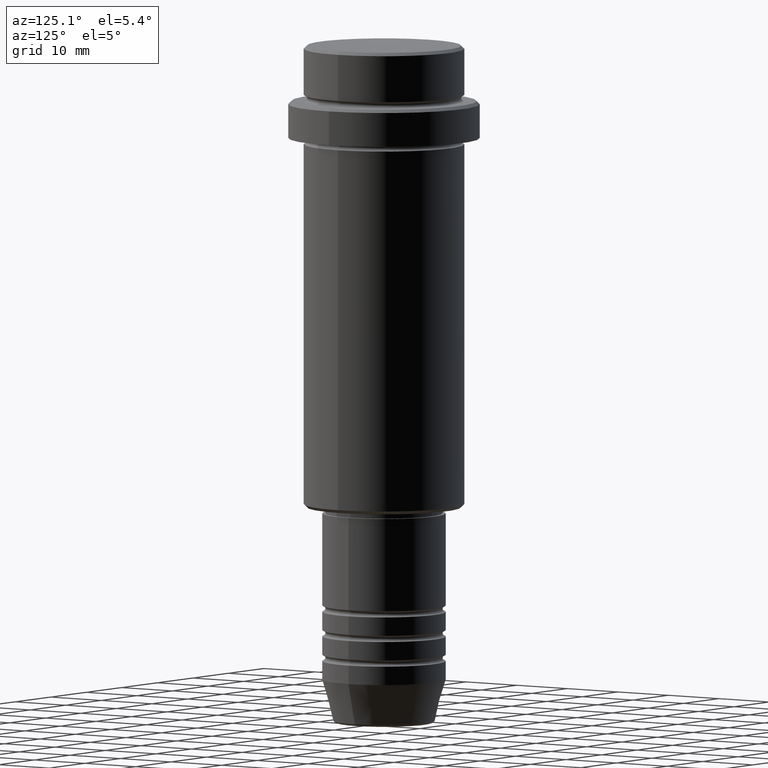
[diagram: clean part render]
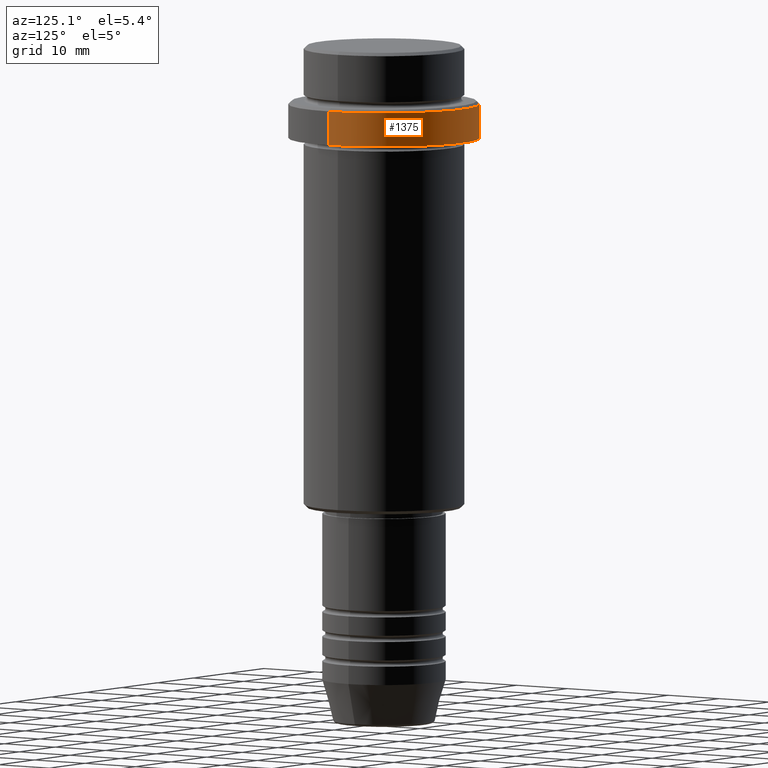
[diagram: same view with one face highlighted and labeled with its STEP entity id]
A machine part, auxiliary view. The second image highlights one B-rep face of the part: STEP entity #1375.
In plain terms, the highlighted cylindrical surface (partial cylindrical patch) has radius 15.5 mm, axis along (-0, -0, 1).
Its self-contained STEP definition (entity closure, byte-faithful):
#81 = EDGE_CURVE ( 'NONE', #457, #151, #596, .T. ) ;
#96 = EDGE_CURVE ( 'NONE', #1121, #457, #1208, .T. ) ;
#102 = CARTESIAN_POINT ( 'NONE',  ( -15.50000000000000000, 1.898202538678397557E-15, 0.000000000000000000 ) ) ;
#151 = VERTEX_POINT ( 'NONE', #795 ) ;
#233 = DIRECTION ( 'NONE',  ( 1.000000000000000000, 0.000000000000000000, 0.000000000000000000 ) ) ;
#237 = AXIS2_PLACEMENT_3D ( 'NONE', #347, #1307, #233 ) ;
#251 = DIRECTION ( 'NONE',  ( -0.000000000000000000, -0.000000000000000000, 1.000000000000000000 ) ) ;
#312 = CARTESIAN_POINT ( 'NONE',  ( 15.50000000000000000, 0.000000000000000000, 0.000000000000000000 ) ) ;
#341 = DIRECTION ( 'NONE',  ( -0.000000000000000000, -0.000000000000000000, 1.000000000000000000 ) ) ;
#347 = CARTESIAN_POINT ( 'NONE',  ( 0.000000000000000000, 0.000000000000000000, 0.000000000000000000 ) ) ;
#438 = ORIENTED_EDGE ( 'NONE', *, *, #96, .T. ) ;
#449 = DIRECTION ( 'NONE',  ( 1.000000000000000000, 0.000000000000000000, 0.000000000000000000 ) ) ;
#456 = VERTEX_POINT ( 'NONE', #1376 ) ;
#457 = VERTEX_POINT ( 'NONE', #1283 ) ;
#537 = VECTOR ( 'NONE', #251, 1000.000000000000000 ) ;
#596 = CIRCLE ( 'NONE', #1047, 15.50000000000000000 ) ;
#691 = CIRCLE ( 'NONE', #1207, 15.50000000000000000 ) ;
#694 = CARTESIAN_POINT ( 'NONE',  ( 0.000000000000000000, 0.000000000000000000, -9.499999999999998224 ) ) ;
#708 = CYLINDRICAL_SURFACE ( 'NONE', #237, 15.50000000000000000 ) ;
#782 = EDGE_CURVE ( 'NONE', #456, #151, #1281, .T. ) ;
#795 = CARTESIAN_POINT ( 'NONE',  ( 15.50000000000000000, 0.000000000000000000, -9.499999999999998224 ) ) ;
#800 = DIRECTION ( 'NONE',  ( 1.000000000000000000, 0.000000000000000000, 0.000000000000000000 ) ) ;
#887 = CARTESIAN_POINT ( 'NONE',  ( 0.000000000000000000, 0.000000000000000000, -15.00000000000000000 ) ) ;
#904 = ORIENTED_EDGE ( 'NONE', *, *, #1384, .T. ) ;
#1047 = AXIS2_PLACEMENT_3D ( 'NONE', #694, #1302, #800 ) ;
#1117 = VECTOR ( 'NONE', #1151, 1000.000000000000000 ) ;
#1121 = VERTEX_POINT ( 'NONE', #1215 ) ;
#1151 = DIRECTION ( 'NONE',  ( -0.000000000000000000, -0.000000000000000000, 1.000000000000000000 ) ) ;
#1194 = FACE_OUTER_BOUND ( 'NONE', #1401, .T. ) ;
#1207 = AXIS2_PLACEMENT_3D ( 'NONE', #887, #341, #449 ) ;
#1208 = LINE ( 'NONE', #102, #537 ) ;
#1215 = CARTESIAN_POINT ( 'NONE',  ( -15.50000000000000000, 1.898202538678397557E-15, -15.00000000000000000 ) ) ;
#1221 = ORIENTED_EDGE ( 'NONE', *, *, #782, .F. ) ;
#1281 = LINE ( 'NONE', #312, #1117 ) ;
#1283 = CARTESIAN_POINT ( 'NONE',  ( -15.50000000000000000, 1.898202538678397557E-15, -9.499999999999998224 ) ) ;
#1302 = DIRECTION ( 'NONE',  ( 0.000000000000000000, 0.000000000000000000, -1.000000000000000000 ) ) ;
#1307 = DIRECTION ( 'NONE',  ( -0.000000000000000000, -0.000000000000000000, 1.000000000000000000 ) ) ;
#1328 = ORIENTED_EDGE ( 'NONE', *, *, #81, .T. ) ;
#1375 = ADVANCED_FACE ( 'NONE', ( #1194 ), #708, .T. ) ;
#1376 = CARTESIAN_POINT ( 'NONE',  ( 15.50000000000000000, 0.000000000000000000, -15.00000000000000000 ) ) ;
#1384 = EDGE_CURVE ( 'NONE', #456, #1121, #691, .T. ) ;
#1401 = EDGE_LOOP ( 'NONE', ( #904, #438, #1328, #1221 ) ) ;